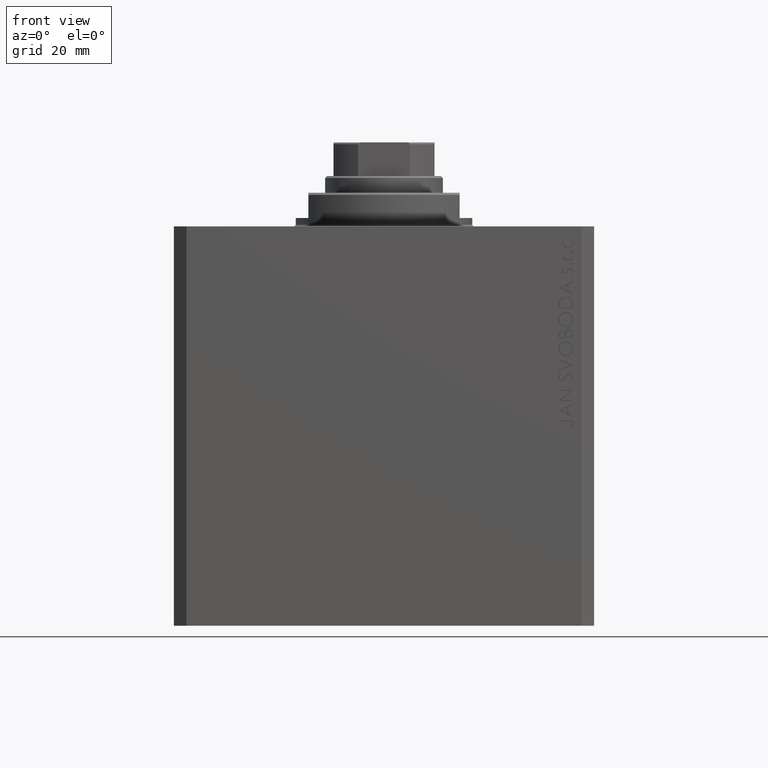
[diagram: clean part render]
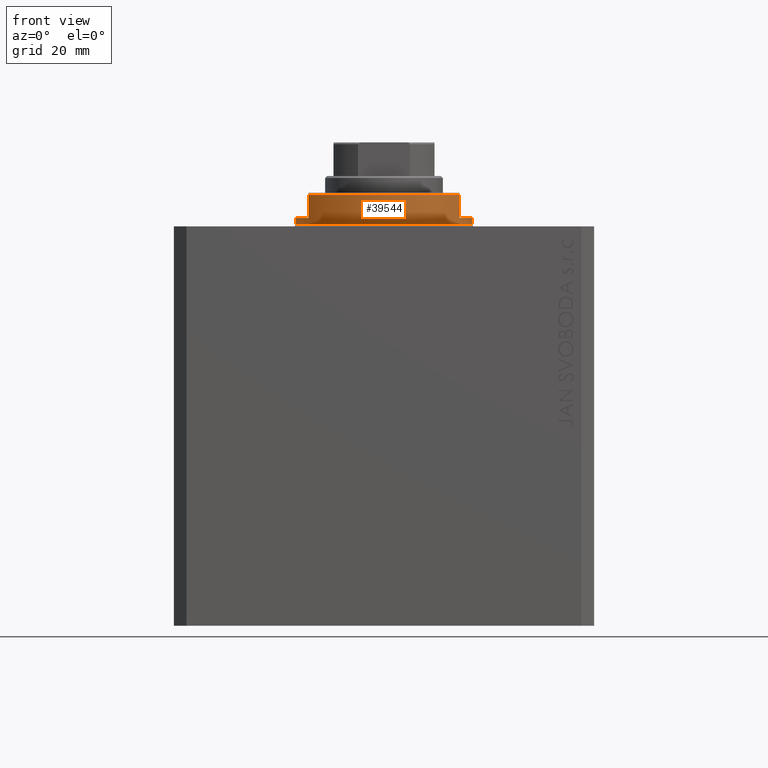
[diagram: same view with one face highlighted and labeled with its STEP entity id]
A machine part, front view. The second image highlights one B-rep face of the part: STEP entity #39544.
In plain terms, the highlighted cylindrical surface (partial cylindrical patch) has radius 21 mm, axis along (0, 0, -1).
Its self-contained STEP definition (entity closure, byte-faithful):
#236 = CARTESIAN_POINT ( 'NONE',  ( 0.000000000000000000, 0.000000000000000000, -7.500000000000016875 ) ) ;
#393 = DIRECTION ( 'NONE',  ( 1.000000000000000000, 0.000000000000000000, 0.000000000000000000 ) ) ;
#712 = VERTEX_POINT ( 'NONE', #7127 ) ;
#956 = CARTESIAN_POINT ( 'NONE',  ( -21.00000000000000000, 2.571758278209441661E-15, -0.5000000000000004441 ) ) ;
#2624 = CARTESIAN_POINT ( 'NONE',  ( -21.00000000000000000, 2.571758278209441661E-15, -8.000000000000000000 ) ) ;
#3804 = CARTESIAN_POINT ( 'NONE',  ( 18.00000000000000000, -10.81665382639197048, -8.000000000000000000 ) ) ;
#4227 = CARTESIAN_POINT ( 'NONE',  ( 0.000000000000000000, 0.000000000000000000, -0.5000000000000004441 ) ) ;
#5092 = DIRECTION ( 'NONE',  ( -1.000000000000000000, 0.000000000000000000, 0.000000000000000000 ) ) ;
#5686 = VERTEX_POINT ( 'NONE', #956 ) ;
#6539 = DIRECTION ( 'NONE',  ( -0.000000000000000000, -0.000000000000000000, 1.000000000000000000 ) ) ;
#7127 = CARTESIAN_POINT ( 'NONE',  ( 18.00000000000000000, -10.81665382639197048, -7.500000000000016875 ) ) ;
#7480 = EDGE_CURVE ( 'NONE', #22725, #39024, #25419, .T. ) ;
#7593 = DIRECTION ( 'NONE',  ( -0.000000000000000000, -0.000000000000000000, -1.000000000000000000 ) ) ;
#7965 = DIRECTION ( 'NONE',  ( -0.000000000000000000, -0.000000000000000000, 1.000000000000000000 ) ) ;
#8188 = CYLINDRICAL_SURFACE ( 'NONE', #26985, 21.00000000000000000 ) ;
#9173 = CARTESIAN_POINT ( 'NONE',  ( 21.00000000000000000, 0.000000000000000000, -8.000000000000000000 ) ) ;
#9341 = LINE ( 'NONE', #2624, #42934 ) ;
#10872 = AXIS2_PLACEMENT_3D ( 'NONE', #4227, #7593, #393 ) ;
#11098 = EDGE_CURVE ( 'NONE', #33443, #14084, #41949, .T. ) ;
#12440 = CARTESIAN_POINT ( 'NONE',  ( 18.00000000000000000, -10.81665382639197048, -2.000000000000000000 ) ) ;
#12712 = CARTESIAN_POINT ( 'NONE',  ( 0.000000000000000000, 0.000000000000000000, -8.000000000000000000 ) ) ;
#12737 = ORIENTED_EDGE ( 'NONE', *, *, #41656, .F. ) ;
#12924 = ORIENTED_EDGE ( 'NONE', *, *, #11098, .T. ) ;
#14084 = VERTEX_POINT ( 'NONE', #32449 ) ;
#15171 = CARTESIAN_POINT ( 'NONE',  ( 0.000000000000000000, 0.000000000000000000, -2.000000000000000000 ) ) ;
#15245 = CARTESIAN_POINT ( 'NONE',  ( 0.000000000000000000, 0.000000000000000000, -2.000000000000000000 ) ) ;
#17238 = LINE ( 'NONE', #38762, #32712 ) ;
#17784 = AXIS2_PLACEMENT_3D ( 'NONE', #15171, #45768, #5092 ) ;
#18350 = VERTEX_POINT ( 'NONE', #12440 ) ;
#18553 = ORIENTED_EDGE ( 'NONE', *, *, #31806, .F. ) ;
#19634 = CARTESIAN_POINT ( 'NONE',  ( 21.00000000000000000, 0.000000000000000000, -2.000000000000000000 ) ) ;
#20012 = ORIENTED_EDGE ( 'NONE', *, *, #37482, .T. ) ;
#21154 = ORIENTED_EDGE ( 'NONE', *, *, #33129, .F. ) ;
#21680 = VECTOR ( 'NONE', #32994, 1000.000000000000000 ) ;
#22358 = CIRCLE ( 'NONE', #41445, 21.00000000000000000 ) ;
#22725 = VERTEX_POINT ( 'NONE', #41654 ) ;
#22772 = DIRECTION ( 'NONE',  ( 1.000000000000000000, 0.000000000000000000, 0.000000000000000000 ) ) ;
#22793 = EDGE_CURVE ( 'NONE', #22725, #35684, #17238, .T. ) ;
#22959 = ORIENTED_EDGE ( 'NONE', *, *, #36689, .T. ) ;
#23365 = ORIENTED_EDGE ( 'NONE', *, *, #22793, .T. ) ;
#25419 = CIRCLE ( 'NONE', #17784, 21.00000000000000000 ) ;
#26136 = CIRCLE ( 'NONE', #10872, 21.00000000000000000 ) ;
#26985 = AXIS2_PLACEMENT_3D ( 'NONE', #12712, #7965, #22772 ) ;
#31477 = CIRCLE ( 'NONE', #32266, 21.00000000000000000 ) ;
#31806 = EDGE_CURVE ( 'NONE', #39024, #5686, #9341, .T. ) ;
#32266 = AXIS2_PLACEMENT_3D ( 'NONE', #15245, #44678, #45138 ) ;
#32351 = ORIENTED_EDGE ( 'NONE', *, *, #7480, .F. ) ;
#32449 = CARTESIAN_POINT ( 'NONE',  ( 21.00000000000000000, 0.000000000000000000, -0.5000000000000004441 ) ) ;
#32712 = VECTOR ( 'NONE', #42603, 1000.000000000000000 ) ;
#32994 = DIRECTION ( 'NONE',  ( 0.000000000000000000, 0.000000000000000000, -1.000000000000000000 ) ) ;
#33129 = EDGE_CURVE ( 'NONE', #33443, #18350, #31477, .T. ) ;
#33443 = VERTEX_POINT ( 'NONE', #19634 ) ;
#35684 = VERTEX_POINT ( 'NONE', #42391 ) ;
#36585 = LINE ( 'NONE', #3804, #21680 ) ;
#36689 = EDGE_CURVE ( 'NONE', #14084, #5686, #26136, .T. ) ;
#37482 = EDGE_CURVE ( 'NONE', #35684, #712, #22358, .T. ) ;
#38762 = CARTESIAN_POINT ( 'NONE',  ( -18.00000000000000000, -10.81665382639197048, -8.000000000000000000 ) ) ;
#39024 = VERTEX_POINT ( 'NONE', #41724 ) ;
#39544 = ADVANCED_FACE ( 'NONE', ( #40950 ), #8188, .T. ) ;
#39722 = DIRECTION ( 'NONE',  ( 0.000000000000000000, 0.000000000000000000, 1.000000000000000000 ) ) ;
#40417 = DIRECTION ( 'NONE',  ( -1.000000000000000000, 0.000000000000000000, 0.000000000000000000 ) ) ;
#40950 = FACE_OUTER_BOUND ( 'NONE', #46766, .T. ) ;
#41445 = AXIS2_PLACEMENT_3D ( 'NONE', #236, #39722, #40417 ) ;
#41654 = CARTESIAN_POINT ( 'NONE',  ( -18.00000000000000000, -10.81665382639197048, -2.000000000000000000 ) ) ;
#41656 = EDGE_CURVE ( 'NONE', #18350, #712, #36585, .T. ) ;
#41724 = CARTESIAN_POINT ( 'NONE',  ( -21.00000000000000000, 2.571758278209441661E-15, -2.000000000000000000 ) ) ;
#41949 = LINE ( 'NONE', #9173, #46608 ) ;
#42391 = CARTESIAN_POINT ( 'NONE',  ( -18.00000000000000000, -10.81665382639197048, -7.500000000000017764 ) ) ;
#42603 = DIRECTION ( 'NONE',  ( 0.000000000000000000, 0.000000000000000000, -1.000000000000000000 ) ) ;
#42934 = VECTOR ( 'NONE', #45706, 1000.000000000000000 ) ;
#44678 = DIRECTION ( 'NONE',  ( 0.000000000000000000, 0.000000000000000000, -1.000000000000000000 ) ) ;
#45138 = DIRECTION ( 'NONE',  ( -1.000000000000000000, 0.000000000000000000, 0.000000000000000000 ) ) ;
#45706 = DIRECTION ( 'NONE',  ( -0.000000000000000000, -0.000000000000000000, 1.000000000000000000 ) ) ;
#45768 = DIRECTION ( 'NONE',  ( 0.000000000000000000, 0.000000000000000000, -1.000000000000000000 ) ) ;
#46608 = VECTOR ( 'NONE', #6539, 1000.000000000000000 ) ;
#46766 = EDGE_LOOP ( 'NONE', ( #18553, #32351, #23365, #20012, #12737, #21154, #12924, #22959 ) ) ;